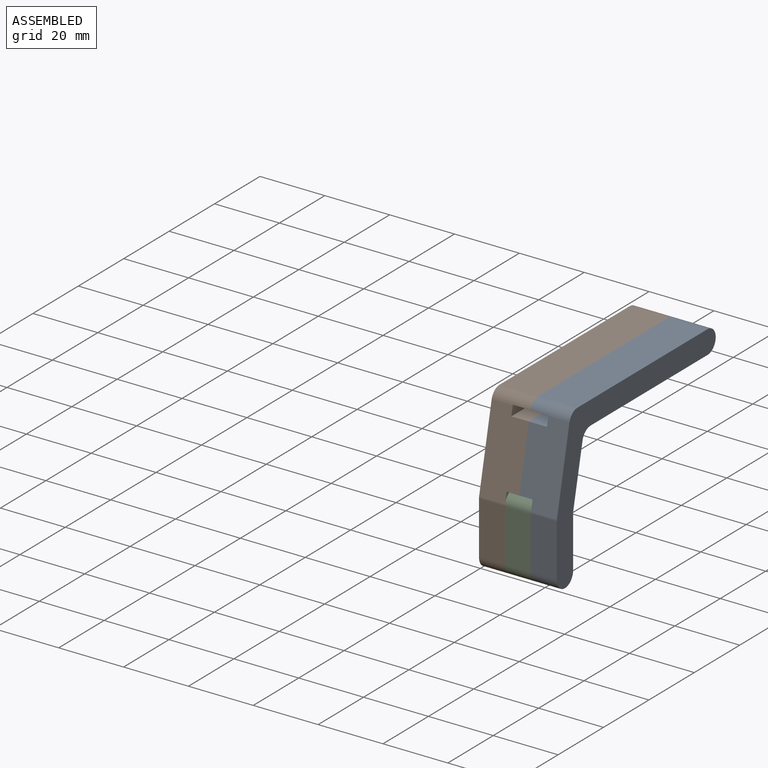
[diagram: assembled view]
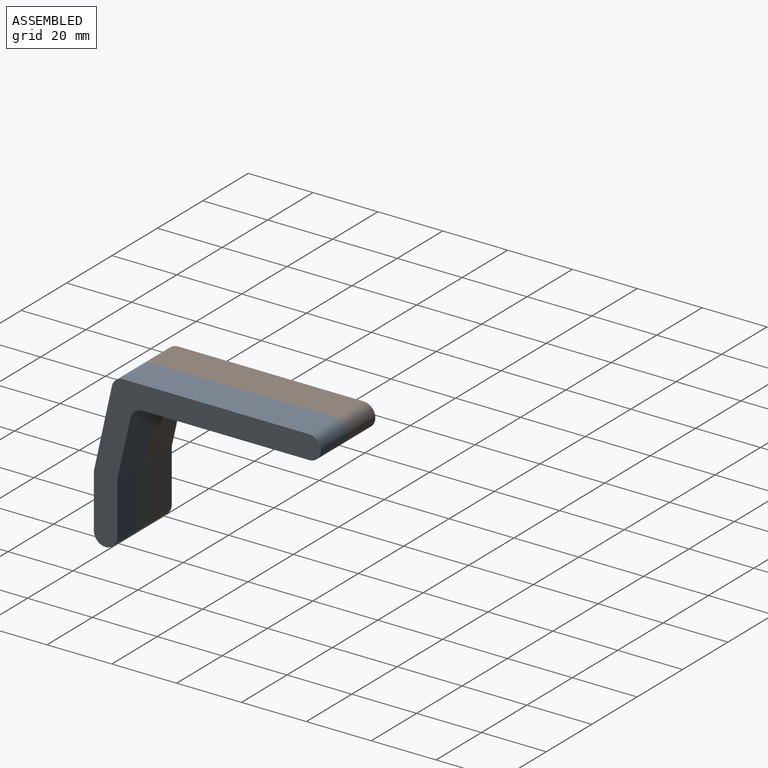
[diagram: assembled view, second angle]
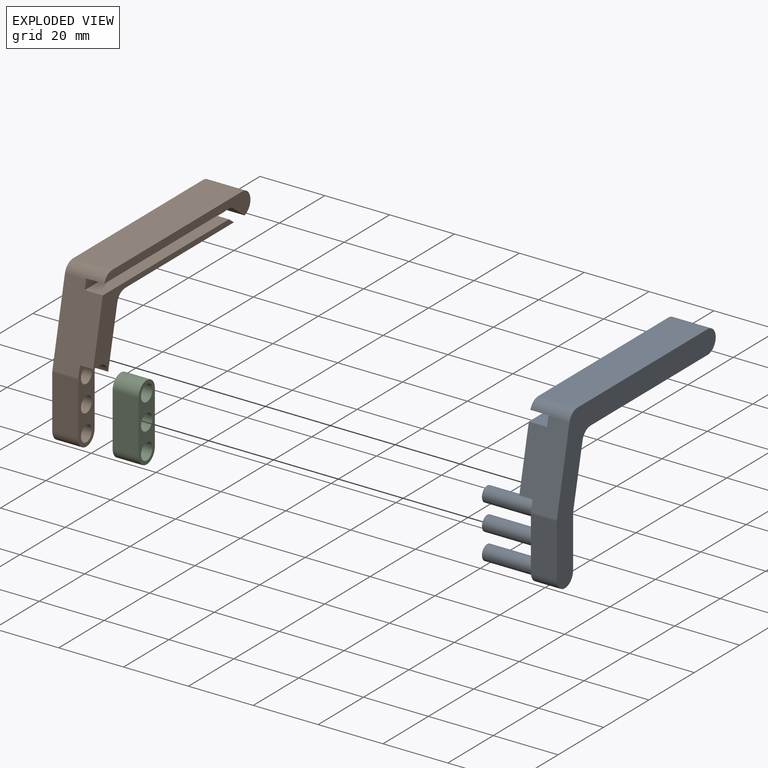
[diagram: exploded view]
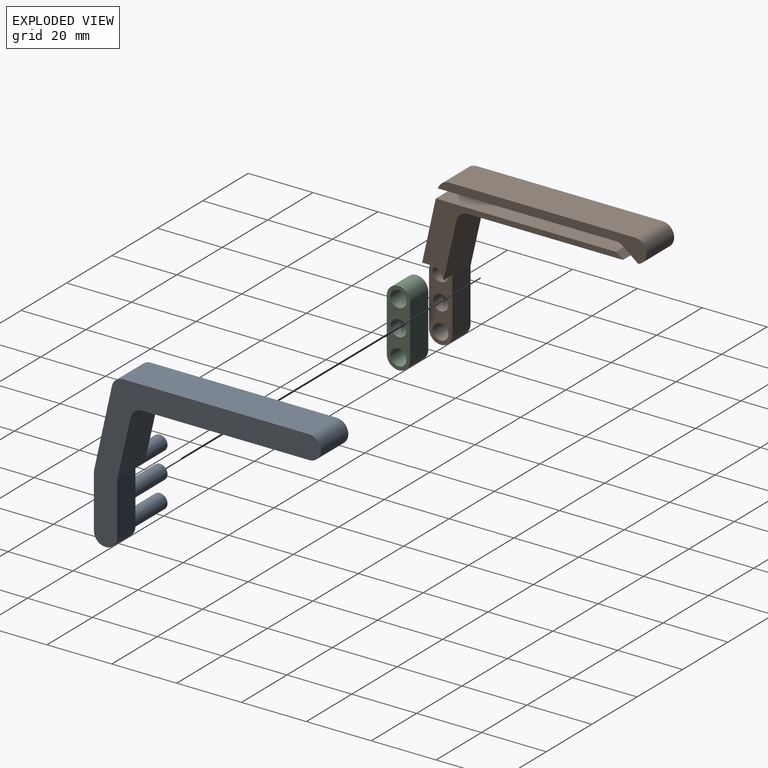
[diagram: exploded view, second angle]
ASSEMBLY  parts=3 mates=3
PART A: 29 faces, bbox 24x48.2x70 mm
  f0: plane 25.03x12.1mm, normal (0,0.22,0.98), area 280.7mm2, adj f1,f2,f3,f10,f12,f13,f26,f27
  f1: cylinder r=3.6mm len=12.1mm, axis (1,0,0), area 57.3mm2, adj f0,f9,f10,f14,f17,f26
  f2: plane 23.7x7.35mm, normal (-1,0,0), area 111.5mm2, adj f0,f3,f4,f5,f6,f7,f20,f22
  f3: cylinder r=3.6mm len=8mm, axis (-1,0,0), area 3.8mm2, adj f0,f2,f4,f10
  f4: plane 16.3x8mm, normal (0,0,1), area 130.4mm2, adj f2,f3,f5,f10
  f5: cylinder r=3.6mm len=8mm, axis (-1,0,0), area 90.5mm2, adj f2,f4,f6,f10
  f6: plane 16.3x8mm, normal (0,0,-1), area 130.4mm2, adj f2,f5,f7,f10
  f7: plane 18.32x12.1mm, normal (0,-0.22,-0.98), area 224.6mm2, adj f2,f6,f10,f13,f19,f28
  f8: plane 51.54x12.1mm, normal (0,-1,0), area 603mm2, adj f10,f11,f13,f18,f19,f26
  f9: plane 57.32x12.1mm, normal (0,1,0), area 693.6mm2, adj f1,f10,f17,f18
  f10: plane 70x48.23mm, normal (1,0,0), area 752.1mm2, adj f0,f1,f3,f4,f5,f6,f7,f8
  f11: plane 5.6x2.15mm, normal (0,0.79,-0.61), area 15.2mm2, adj f8,f12,f13,f26
  f12: plane 55.6x5.6mm, normal (0,1,0), area 311.3mm2, adj f0,f11,f13,f26
  f13: plane 61.94x22.16mm, normal (-1,0,0), area 227.7mm2, adj f0,f7,f8,f11,f12,f19,f27,f28
  f14: plane 54.92x5.6mm, normal (0,-1,0), area 307.6mm2, adj f1,f15,f17,f26
  f15: cylinder r=3mm len=5.6mm, axis (1,0,0), area 11.1mm2, adj f14,f16,f17,f26
  f16: plane 5.6x5.01mm, normal (0,-0.79,0.61), area 35.5mm2, adj f15,f17,f18,f26
  f17: plane 64.36x7.05mm, normal (-1,0,0), area 180.5mm2, adj f1,f9,f14,f15,f16,f18
  f18: cylinder r=3.6mm len=12.1mm, axis (-1,0,0), area 131.1mm2, adj f8,f9,f10,f16,f17,f26
  f19: cylinder r=3.6mm len=12.1mm, axis (1,0,0), area 58.7mm2, adj f7,f8,f10,f13
  f20: cylinder r=2.3mm len=16mm, axis (1,0,0), area 231.2mm2, adj f2,f21
  f21: plane 4.6x4.6mm, normal (-1,0,0), area 16.6mm2, adj f20
  f22: cylinder r=2.3mm len=16mm, axis (1,0,0), area 231.2mm2, adj f2,f23
  f23: plane 4.6x4.6mm, normal (-1,0,0), area 16.6mm2, adj f22
  f24: cylinder r=2.3mm len=16mm, axis (1,0,0), area 231.2mm2, adj f2,f25
  f25: plane 4.6x4.6mm, normal (-1,0,0), area 16.6mm2, adj f24
  f26: plane 62.45x4.67mm, normal (-1,0,0), area 182.7mm2, adj f0,f1,f8,f11,f12,f14,f15,f16
  f27: plane 4.1x2.83mm, normal (0,-1,0), area 11.6mm2, adj f0,f2,f13,f28
  f28: cylinder r=3.8mm len=4.1mm, axis (-1,0,0), area 21.8mm2, adj f2,f7,f13,f27
PART B: 26 faces, bbox 12.1x48.2x70 mm
  f0: plane 25.03x12.1mm, normal (0,0.22,0.98), area 280.7mm2, adj f2,f5,f7,f10,f16,f17,f23,f25
  f1: plane 51.54x12.1mm, normal (0,-1,0), area 603mm2, adj f3,f4,f7,f16,f22,f23
  f2: cylinder r=3.6mm len=12.1mm, axis (-1,0,0), area 57.3mm2, adj f0,f9,f16,f18,f21,f23
  f3: cylinder r=3.6mm len=12.1mm, axis (1,0,0), area 131.1mm2, adj f1,f9,f16,f20,f21,f23
  f4: plane 5.6x2.15mm, normal (0,0.79,-0.61), area 15.2mm2, adj f1,f5,f7,f23
  f5: plane 55.6x5.6mm, normal (0,1,0), area 311.3mm2, adj f0,f4,f7,f23
  f6: plane 18.32x12.1mm, normal (0,-0.22,-0.98), area 224.6mm2, adj f7,f8,f16,f17,f22,f24
  f7: plane 61.94x22.16mm, normal (1,0,0), area 227.7mm2, adj f0,f1,f4,f5,f6,f22,f24,f25
  f8: plane 16.3x8mm, normal (0,0,-1), area 130.4mm2, adj f6,f14,f16,f17
  f9: plane 57.32x12.1mm, normal (0,1,0), area 693.6mm2, adj f2,f3,f16,f21
  f10: cylinder r=3.6mm len=8mm, axis (1,0,0), area 3.8mm2, adj f0,f11,f16,f17
  f11: plane 16.3x8mm, normal (0,0,1), area 130.4mm2, adj f10,f14,f16,f17
  f12: cylinder r=2.4mm len=8mm, axis (1,0,0), area 120.6mm2, adj f16,f17
  f13: cylinder r=2.4mm len=8mm, axis (1,0,0), area 120.6mm2, adj f16,f17
  f14: cylinder r=3.6mm len=8mm, axis (1,0,0), area 90.5mm2, adj f8,f11,f16,f17
  f15: cylinder r=2.4mm len=8mm, axis (1,0,0), area 120.6mm2, adj f16,f17
  f16: plane 70x48.23mm, normal (-1,0,0), area 697.9mm2, adj f0,f1,f2,f3,f6,f8,f9,f10
  f17: plane 23.7x7.35mm, normal (1,0,0), area 107.1mm2, adj f0,f6,f8,f10,f11,f12,f13,f14
  f18: plane 54.92x5.6mm, normal (0,-1,0), area 307.6mm2, adj f2,f19,f21,f23
  f19: cylinder r=3mm len=5.6mm, axis (-1,0,0), area 11.1mm2, adj f18,f20,f21,f23
  f20: plane 5.6x5.01mm, normal (0,-0.79,0.61), area 35.5mm2, adj f3,f19,f21,f23
  f21: plane 64.36x7.05mm, normal (1,0,0), area 180.5mm2, adj f2,f3,f9,f18,f19,f20
  f22: cylinder r=3.6mm len=12.1mm, axis (1,0,0), area 58.7mm2, adj f1,f6,f7,f16
  f23: plane 62.45x4.67mm, normal (1,0,0), area 182.7mm2, adj f0,f1,f2,f3,f4,f5,f18,f19
  f24: cylinder r=3.8mm len=4.1mm, axis (1,0,0), area 21.8mm2, adj f6,f7,f17,f25
  f25: plane 4.1x2.83mm, normal (0,-1,0), area 11.6mm2, adj f0,f7,f17,f24
PART C: 9 faces, bbox 23.5x7.2x8 mm
  f0: plane 16.3x8mm, normal (0,1,0), area 130.4mm2, adj f1,f5,f7,f8
  f1: cylinder r=3.6mm len=8mm, axis (0,0,-1), area 90.5mm2, adj f0,f2,f7,f8
  f2: plane 16.3x8mm, normal (0,-1,0), area 130.4mm2, adj f1,f5,f7,f8
  f3: cylinder r=2.5mm len=8mm, axis (0,0,-1), area 125.7mm2, adj f7,f8
  f4: cylinder r=2.5mm len=8mm, axis (0,0,-1), area 125.7mm2, adj f7,f8
  f5: cylinder r=3.6mm len=8mm, axis (0,0,-1), area 90.5mm2, adj f0,f2,f7,f8
  f6: cylinder r=2.5mm len=8mm, axis (0,0,-1), area 125.7mm2, adj f7,f8
  f7: plane 23.5x7.2mm, normal (0,0,1), area 99.2mm2, adj f0,f1,f2,f3,f4,f5,f6
  f8: plane 23.5x7.2mm, normal (0,0,-1), area 99.2mm2, adj f0,f1,f2,f3,f4,f5,f6
PLACE A rot(axis=(1,0,0),90deg) t=(17.95,-39.77,19.29)mm
PLACE B rot(axis=(1,0,0),90deg) t=(9.95,-31.5,31.03)mm
PLACE C rot(axis=(0,1,0),90deg) t=(9.95,-39.77,19.29)mm
MATE cylindrical C.f6 <-> A.f24  axis (-1,0,0) through (9.95,-39.77,27.44)mm
MATE cylindrical C.f4 <-> A.f20  axis (-1,0,0) through (9.95,-39.77,11.14)mm
MATE cylindrical B.f10 <-> A.f24  axis (1,0,0) through (1.95,-39.77,27.44)mm
